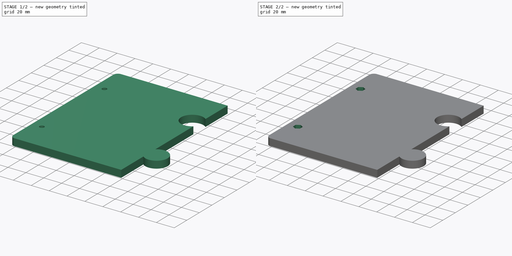
[diagram: build sequence overview — one tinted view per stage of 2, left to right]
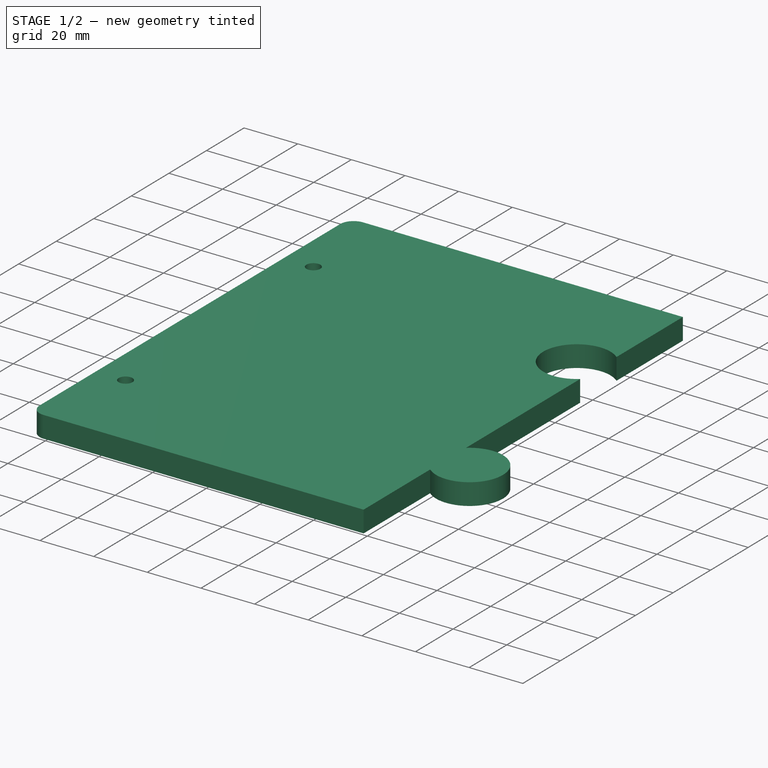
[diagram: stage 1 of 2 — iso view after this stage's code; geometry added in this stage tinted green]
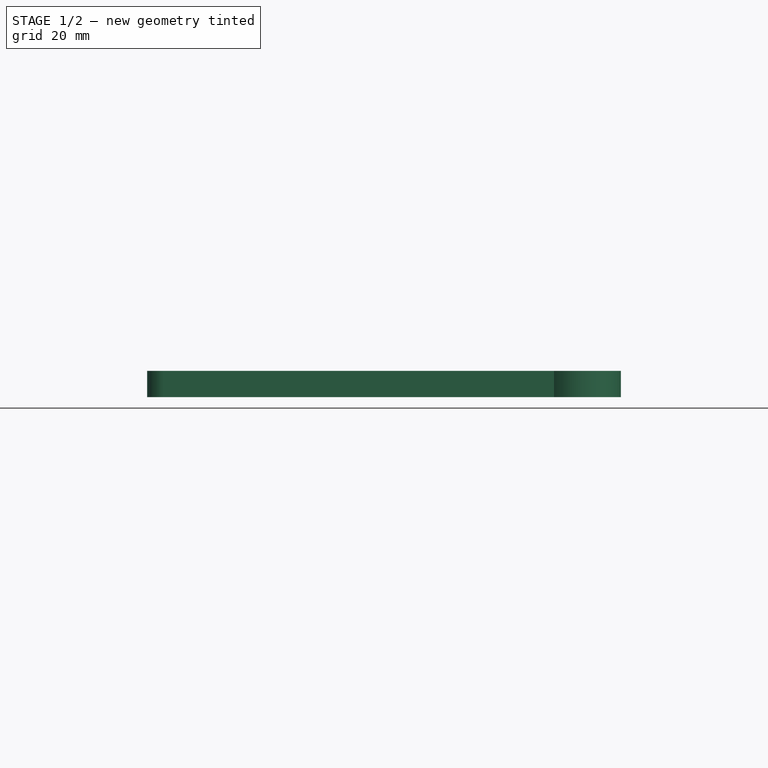
[diagram: stage 1 of 2 — front view after this stage's code; geometry added in this stage tinted green]
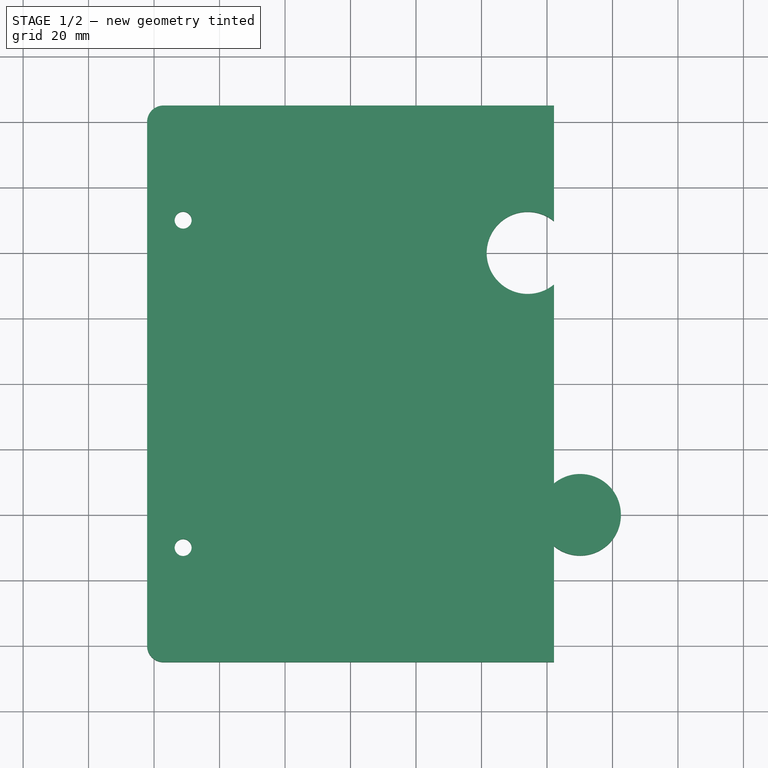
[diagram: stage 1 of 2 — top view after this stage's code; geometry added in this stage tinted green]
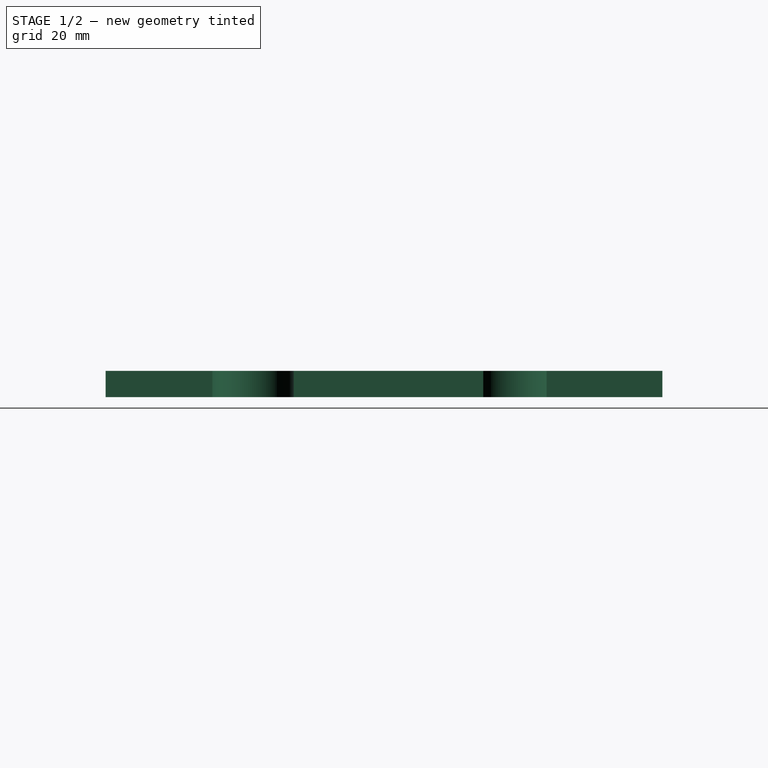
[diagram: stage 1 of 2 — right view after this stage's code; geometry added in this stage tinted green]
FCSTD DOCUMENT  (FreeCAD 0.20R29410 (Git))
Label: phoenix charger mount
License: All rights reserved
LicenseURL: http://en.wikipedia.org/wiki/All_rights_reserved
objects: Sketcher::SketchObject×2, PartDesign::Pad×1, PartDesign::Fillet×1, PartDesign::Pocket×1, PartDesign::Body×1
note: 9 computed .brp shape members not serialized (recipe doc carries the construction recipe); baked Part::Feature solids carry a one-line shape summary decoded from their .brp

FEATURE [Sketcher::SketchObject] Sketch
  FullyConstrained = true
  MapMode = 5
  Support = -> [XY_Plane]
  sketch-geometry (11):
    g0: LineSegment StartX=-62.125 StartY=-85 StartZ=0 EndX=-62.125 EndY=85 EndZ=0
    g1: LineSegment StartX=-62.125 StartY=85 StartZ=0 EndX=62.125 EndY=85 EndZ=0
    g2: LineSegment StartX=62.125 StartY=85 StartZ=0 EndX=62.125 EndY=49.6697 EndZ=0
    g3: LineSegment StartX=62.125 StartY=-85 StartZ=0 EndX=-62.125 EndY=-85 EndZ=0
    g4: GeomPoint X=0 Y=0 Z=0
    g5: LineSegment StartX=62.125 StartY=-49.5395 StartZ=0 EndX=62.125 EndY=-85 EndZ=0
    g6: Circle CenterX=-51.125 CenterY=50 CenterZ=0 NormalX=0 NormalY=0 NormalZ=1 AngleXU=0 Radius=2.6
    g7: Circle CenterX=-51.125 CenterY=-50 CenterZ=0 NormalX=0 NormalY=0 NormalZ=1 AngleXU=0 Radius=2.6
    g8: ArcOfCircle CenterX=54.125 CenterY=40 CenterZ=0 NormalX=0 NormalY=0 NormalZ=1 AngleXU=0 Radius=12.55 StartAngle=0.879612 EndAngle=5.40357
    g9: ArcOfCircle CenterX=70.125 CenterY=-40 CenterZ=0 NormalX=0 NormalY=0 NormalZ=1 AngleXU=0 Radius=12.45 StartAngle=4.01454 EndAngle=8.55183
    g10: LineSegment StartX=62.125 StartY=30.3303 StartZ=0 EndX=62.125 EndY=-30.4605 EndZ=0
  constraints (32):
    c: Coincident(g0,g1)
    c: Coincident(g1,g2)
    c: Coincident(g5,g3)
    c: Coincident(g3,g0)
    c: Horizontal(g1)
    c: Horizontal(g3)
    c: Vertical(g0)
    c: Vertical(g2)
    c: Symmetric(g1,g0,g4)
    c: Coincident(g4,g-1)
    c: DistanceY(g0,g0) = 170
    c: DistanceX(g1,g1) = 124.25
    c: Equal(g6,g7)
    c: DistanceY(g-1,g6) = 50
    c: Diameter(g6) = 5.2
    c: DistanceX(g6,g1) = 113.25
    c: DistanceY(g7,g-1) = 50
    c: DistanceX(g7,g3) = 113.25
    c: DistanceX(g0,g3) = 124.25
    c: Vertical(g5)
    c: Diameter(g8) = 25.1
    c: DistanceY(g-1,g8) = 40
    c: DistanceY(g9,g-1) = 40
    c: DistanceX(g8,g2) = 8
    c: Vertical(g10)
    c: DistanceX(g0,g10) = 124.25
    c: Diameter(g9) = 24.9
    c: Coincident(g8,g10)
    c: Coincident(g8,g2)
    c: Coincident(g9,g10)
    c: Coincident(g9,g5)
    c: DistanceX(g9,g9) = 8
FEATURE [PartDesign::Pad] Pad
  Direction = (0,0,1)
  Length = 8
  Length2 = 10
  Profile = -> Sketch
  ReferenceAxis = -> Sketch [N_Axis]
  Type = 0
FEATURE [PartDesign::Fillet] Fillet
  Base = -> Pad [Edge2,Edge1]
  BaseFeature = -> Pad
  Radius = 5
  SupportTransform = false
  UseAllEdges = false
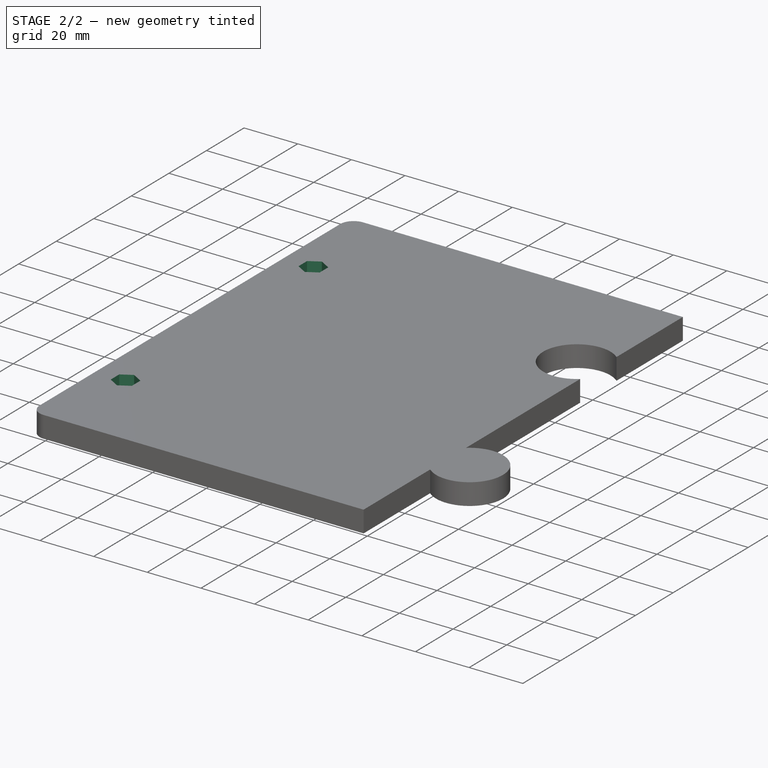
[diagram: stage 2 of 2 — iso view after this stage's code; geometry added in this stage tinted green]
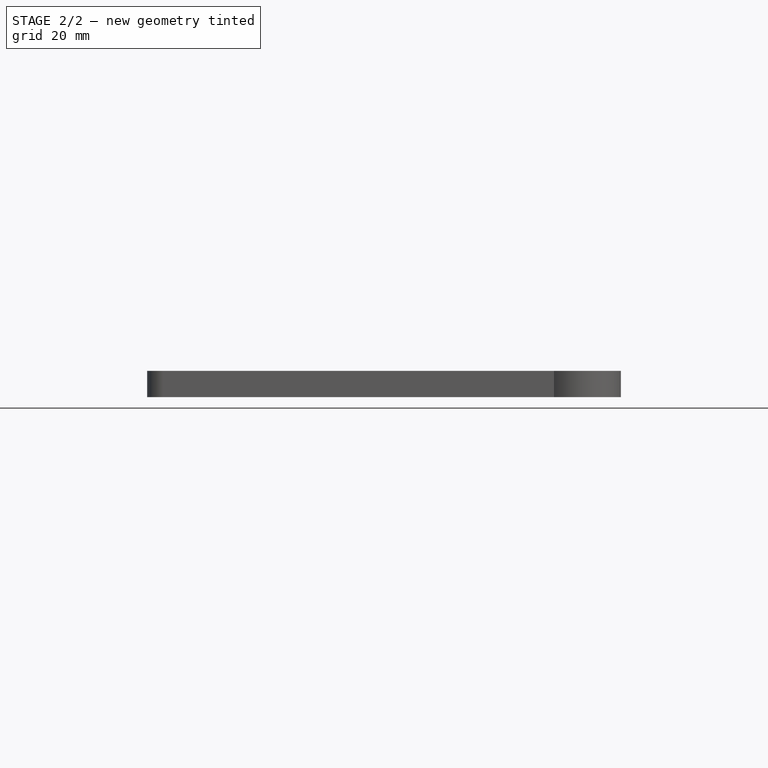
[diagram: stage 2 of 2 — front view after this stage's code; geometry added in this stage tinted green]
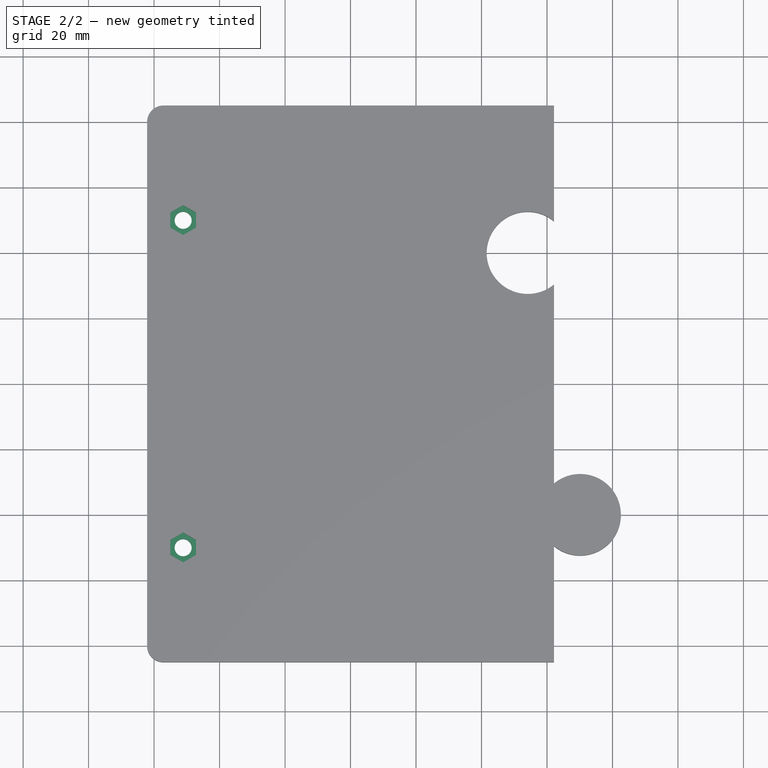
[diagram: stage 2 of 2 — top view after this stage's code; geometry added in this stage tinted green]
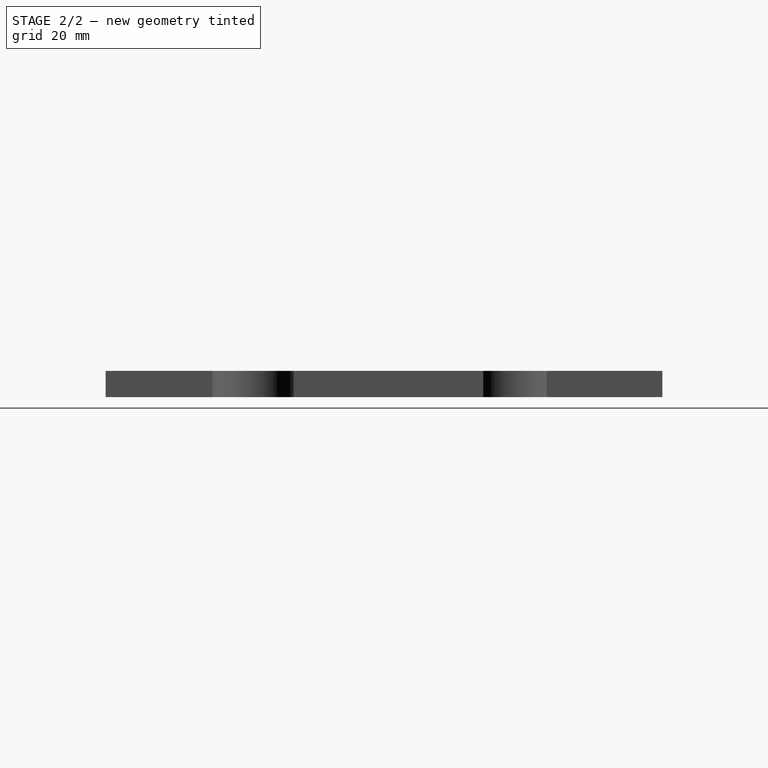
[diagram: stage 2 of 2 — right view after this stage's code; geometry added in this stage tinted green]
FEATURE [Sketcher::SketchObject] Sketch001
  FullyConstrained = false
  MapMode = 5
  Placement = pos=(0,0,8) rot=(0,0,1;0rad)
  Support = -> [Fillet]
  sketch-geometry (14):
    g0: LineSegment StartX=-47.175 StartY=52.2805 StartZ=0 EndX=-51.125 EndY=54.5611 EndZ=0
    g1: LineSegment StartX=-51.125 StartY=54.5611 StartZ=0 EndX=-55.075 EndY=52.2805 EndZ=0
    g2: LineSegment StartX=-55.075 StartY=52.2805 StartZ=0 EndX=-55.075 EndY=47.7195 EndZ=0
    g3: LineSegment StartX=-55.075 StartY=47.7195 StartZ=0 EndX=-51.125 EndY=45.4389 EndZ=0
    g4: LineSegment StartX=-51.125 StartY=45.4389 StartZ=0 EndX=-47.175 EndY=47.7195 EndZ=0
    g5: LineSegment StartX=-47.175 StartY=47.7195 StartZ=0 EndX=-47.175 EndY=52.2805 EndZ=0
    g6: Circle CenterX=-51.125 CenterY=50 CenterZ=0 NormalX=0 NormalY=0 NormalZ=1 AngleXU=0 Radius=4.56107
    g7: LineSegment StartX=-47.175 StartY=-47.7195 StartZ=0 EndX=-51.125 EndY=-45.4389 EndZ=0
    g8: LineSegment StartX=-51.125 StartY=-45.4389 StartZ=0 EndX=-55.075 EndY=-47.7195 EndZ=0
    g9: LineSegment StartX=-55.075 StartY=-47.7195 StartZ=0 EndX=-55.075 EndY=-52.2805 EndZ=0
    g10: LineSegment StartX=-55.075 StartY=-52.2805 StartZ=0 EndX=-51.125 EndY=-54.5611 EndZ=0
    g11: LineSegment StartX=-51.125 StartY=-54.5611 StartZ=0 EndX=-47.175 EndY=-52.2805 EndZ=0
    g12: LineSegment StartX=-47.175 StartY=-52.2805 StartZ=0 EndX=-47.175 EndY=-47.7195 EndZ=0
    g13: Circle CenterX=-51.125 CenterY=-50 CenterZ=0 NormalX=0 NormalY=0 NormalZ=1 AngleXU=0 Radius=4.56107
  constraints (30):
    c: Coincident(g0,g1)
    c: Coincident(g1,g2)
    c: Coincident(g2,g3)
    c: Coincident(g3,g4)
    c: Coincident(g4,g5)
    c: Coincident(g5,g0)
    c: Equal(g0, g1-g5) x5
    c: PointOnObject(g0,g6)
    c: PointOnObject(g1,g6)
    c: PointOnObject(g2,g6)
    c: PointOnObject(g3,g6)
    c: PointOnObject(g4,g6)
    c: PointOnObject(g5,g6)
    c: Coincident(g7,g8)
    c: Coincident(g8,g9)
    c: Coincident(g9,g10)
    c: Coincident(g10,g11)
    c: Coincident(g11,g12)
    c: Coincident(g12,g7)
    c: Equal(g7, g8-g12) x5
    c: PointOnObject(g7,g13)
    c: PointOnObject(g8,g13)
    c: PointOnObject(g9,g13)
    c: PointOnObject(g10,g13)
    c: PointOnObject(g11,g13)
    c: PointOnObject(g12,g13)
    c: Vertical(g2)
    c: Vertical(g9)
    c: DistanceX(g1,g0) = 7.9
    c: DistanceX(g8,g7) = 7.9
FEATURE [PartDesign::Pocket] Pocket
  BaseFeature = -> Fillet
  Direction = (0,0,-1)
  Length = 4
  Length2 = 5
  Profile = -> Sketch001
  ReferenceAxis = -> Sketch001 [N_Axis]
  Type = 0
FEATURE [PartDesign::Body] Body
  Group = -> [Sketch,Pad,Fillet,Sketch001,Pocket]
  Origin = -> Origin
  Tip = -> Pocket
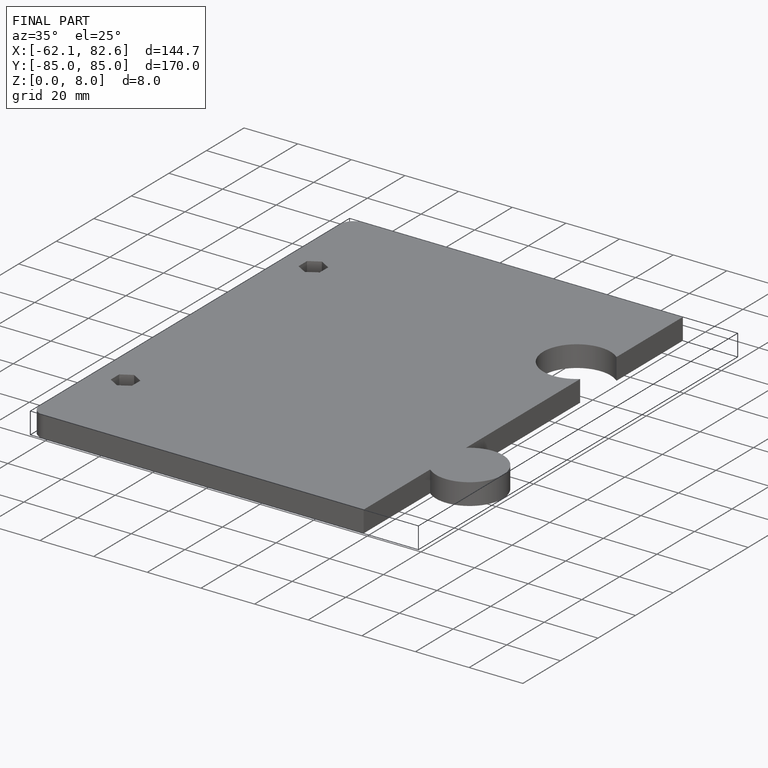
[diagram: finished part — iso view with bounding-box wireframe]
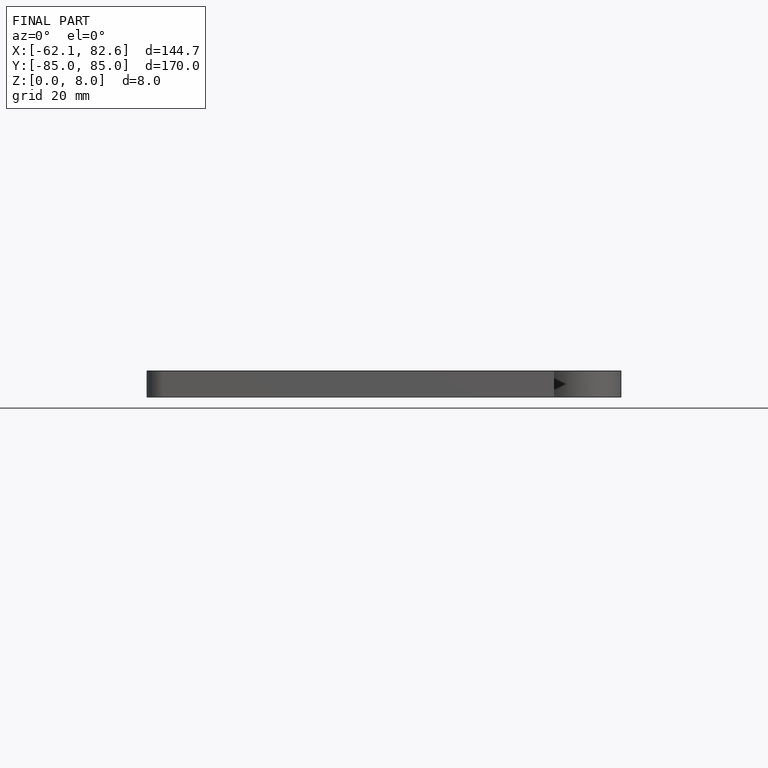
[diagram: finished part — front view with bounding-box wireframe]
